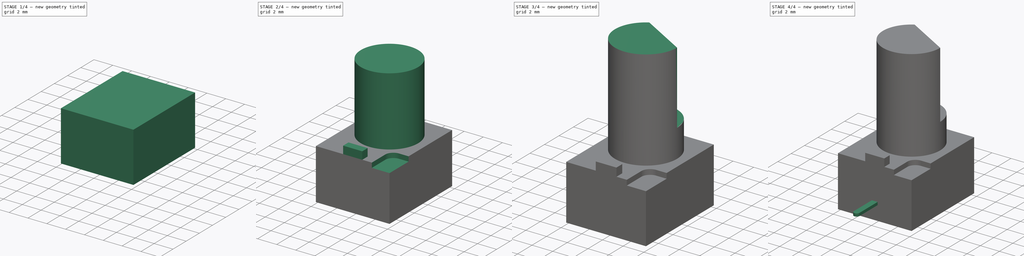
[diagram: build sequence overview — one tinted view per stage of 4, left to right]
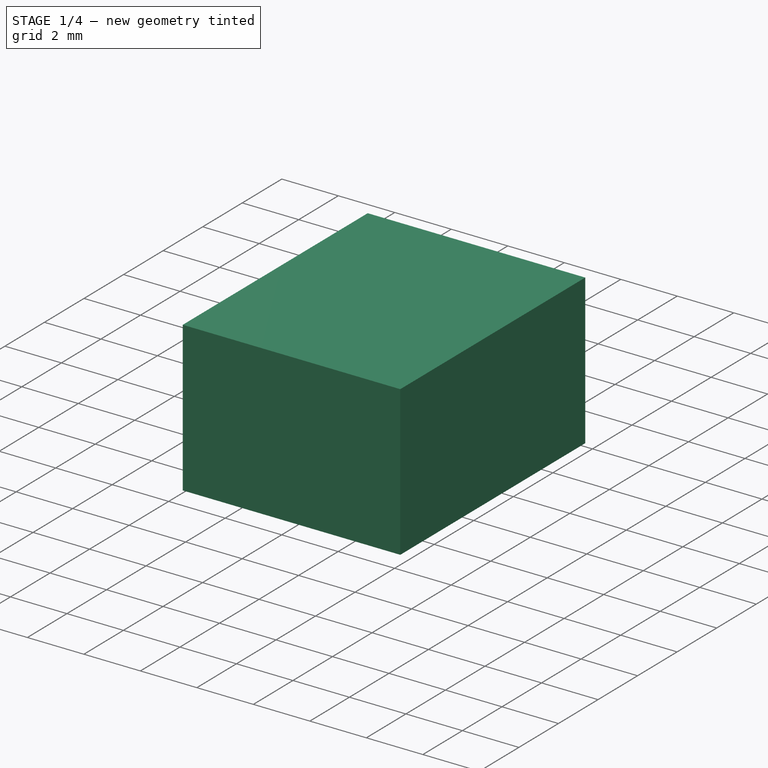
[diagram: stage 1 of 4 — iso view after this stage's code; geometry added in this stage tinted green]
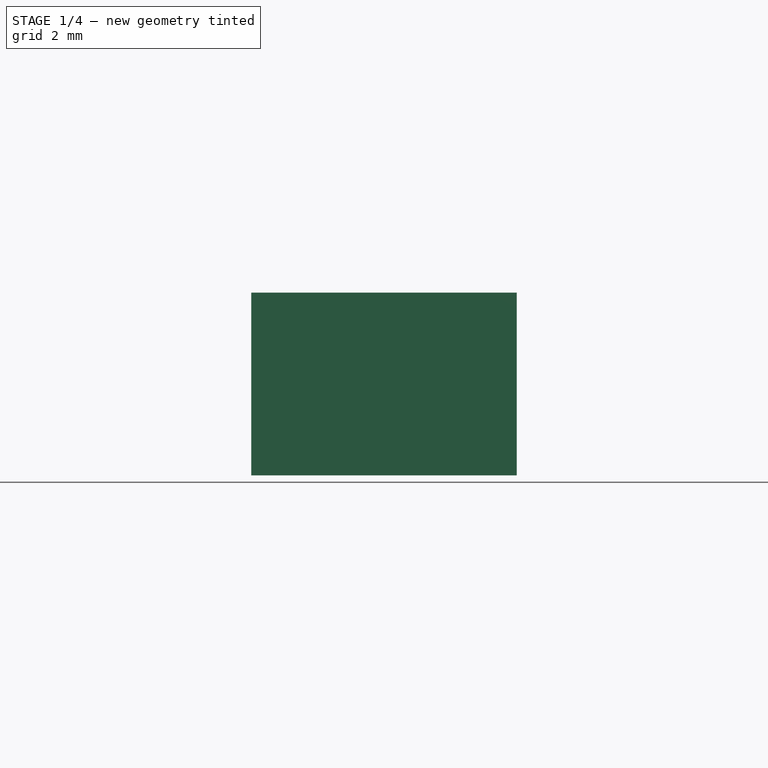
[diagram: stage 1 of 4 — front view after this stage's code; geometry added in this stage tinted green]
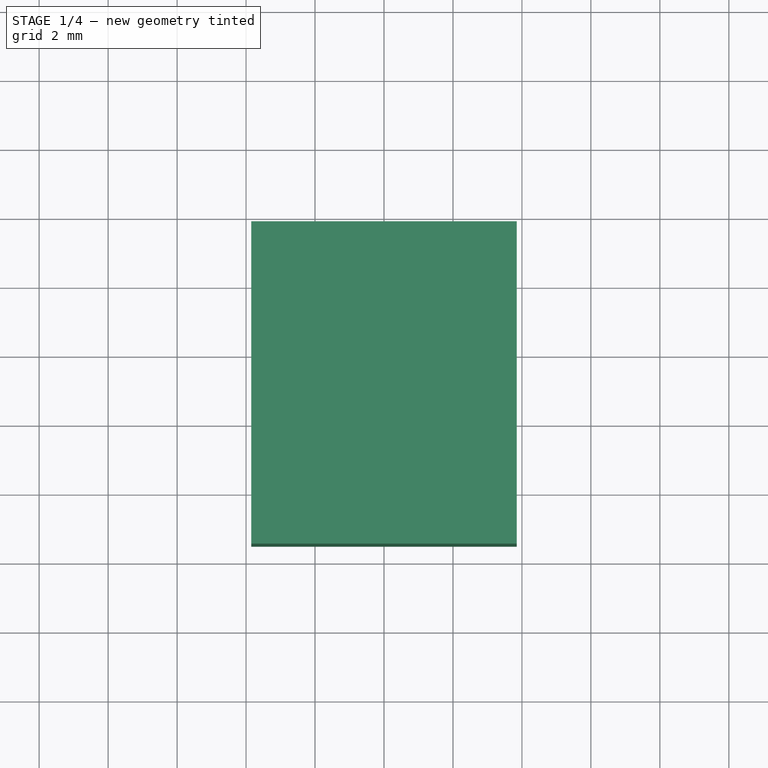
[diagram: stage 1 of 4 — top view after this stage's code; geometry added in this stage tinted green]
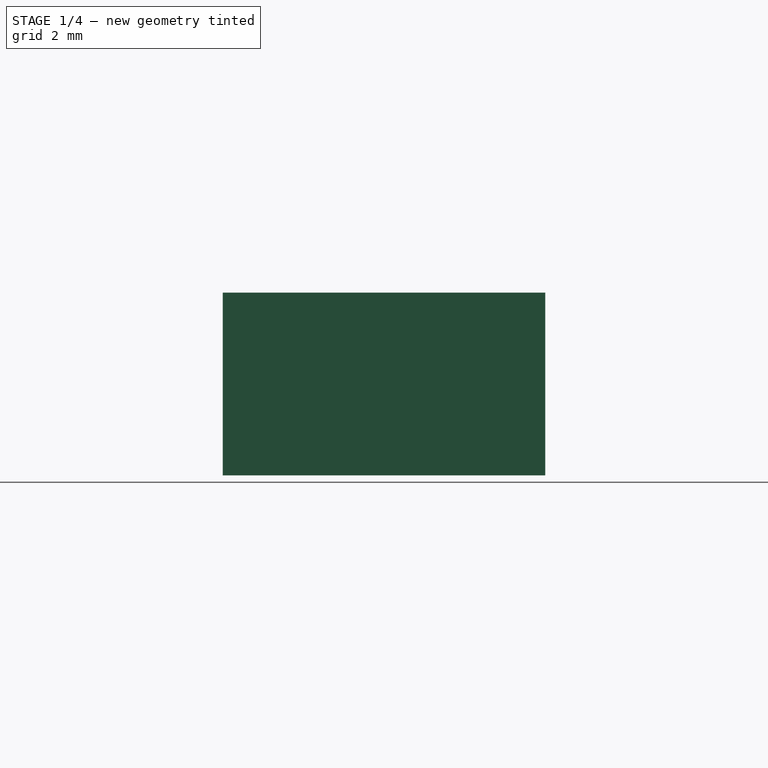
[diagram: stage 1 of 4 — right view after this stage's code; geometry added in this stage tinted green]
FCSTD DOCUMENT  (FreeCAD 0.19R16699 (Git))
Label: Alpha Taiwan Potentiometers Part Design
License: All rights reserved
LicenseURL: http://en.wikipedia.org/wiki/All_rights_reserved
objects: Sketcher::SketchObject×10, PartDesign::Body×6, PartDesign::Pad×5, PartDesign::ShapeBinder×3, PartDesign::Pocket×3, PartDesign::Revolution×2, PartDesign::FeatureBase×2, App::DocumentObjectGroup×1
note: 41 computed .brp shape members not serialized (recipe doc carries the construction recipe); baked Part::Feature solids carry a one-line shape summary decoded from their .brp

FEATURE [Sketcher::SketchObject] Sketch
  MapMode = 5
  Support = -> [XY_Plane]
  sketch-geometry (4):
    g0: LineSegment StartX=-3.85 StartY=3.85 StartZ=0 EndX=3.85 EndY=3.85 EndZ=0
    g1: LineSegment StartX=3.85 StartY=-5.5 StartZ=0 EndX=-3.85 EndY=-5.5 EndZ=0
    g2: LineSegment StartX=3.85 StartY=3.85 StartZ=0 EndX=3.85 EndY=-5.5 EndZ=0
    g3: LineSegment StartX=-3.85 StartY=3.85 StartZ=0 EndX=-3.85 EndY=-5.5 EndZ=0
  constraints (11):
    c: Horizontal(g1)
    c: DistanceX(g0,g0) = 7.7
    c: Symmetric(g0,g0,g-2)
    c: Coincident(g2,g0)
    c: Coincident(g2,g1)
    c: Vertical(g2)
    c: Coincident(g3,g0)
    c: Coincident(g3,g1)
    c: Vertical(g3)
    c: DistanceY(g1,g-1) = 5.5
    c: DistanceY(g-1,g0) = 3.85
FEATURE [PartDesign::Pad] Pad
  Length = 1
  Length2 = 100
  Profile = -> Sketch
  Type = 0
FEATURE [PartDesign::ShapeBinder] ShapeBinder
  Placement = pos=(0,0,1) rot=(0,0,1;0rad)
  Support = -> [Pad]
  TraceSupport = false
FEATURE [Sketcher::SketchObject] Sketch001
  ExternalGeometry = -> [ShapeBinder]
  MapMode = 5
  Placement = pos=(0,0,1) rot=(0,0,1;0rad)
  Support = -> [ShapeBinder]
  sketch-geometry (4):
    g0: LineSegment StartX=3.85 StartY=3.85 StartZ=0 EndX=-3.85 EndY=3.85 EndZ=0
    g1: LineSegment StartX=-3.85 StartY=3.85 StartZ=0 EndX=-3.85 EndY=-5.5 EndZ=0
    g2: LineSegment StartX=-3.85 StartY=-5.5 StartZ=0 EndX=3.85 EndY=-5.5 EndZ=0
    g3: LineSegment StartX=3.85 StartY=-5.5 StartZ=0 EndX=3.85 EndY=3.85 EndZ=0
  constraints (10):
    c: Coincident(g0,g1)
    c: Coincident(g1,g2)
    c: Coincident(g2,g3)
    c: Coincident(g3,g0)
    c: Horizontal(g0)
    c: Horizontal(g2)
    c: Vertical(g1)
    c: Vertical(g3)
    c: Coincident(g0,g-3)
    c: Coincident(g1,g-4)
FEATURE [PartDesign::Pad] Pad001
  BaseFeature = -> Pad
  Length = 3
  Length2 = 100
  Profile = -> Sketch001
  Type = 0
FEATURE [PartDesign::ShapeBinder] ShapeBinder001
  Placement = pos=(0,0,3) rot=(0,0,1;0rad)
  Support = -> [Pad001]
  TraceSupport = false
FEATURE [Sketcher::SketchObject] Sketch002
  ExternalGeometry = -> [ShapeBinder001]
  MapMode = 5
  Placement = pos=(0,0,4) rot=(0,0,1;0rad)
  Support = -> [ShapeBinder001]
  sketch-geometry (4):
    g0: LineSegment StartX=3.85 StartY=3.85 StartZ=0 EndX=-3.85 EndY=3.85 EndZ=0
    g1: LineSegment StartX=-3.85 StartY=3.85 StartZ=0 EndX=-3.85 EndY=-5.5 EndZ=0
    g2: LineSegment StartX=-3.85 StartY=-5.5 StartZ=0 EndX=3.85 EndY=-5.5 EndZ=0
    g3: LineSegment StartX=3.85 StartY=-5.5 StartZ=0 EndX=3.85 EndY=3.85 EndZ=0
  constraints (10):
    c: Coincident(g0,g1)
    c: Coincident(g1,g2)
    c: Coincident(g2,g3)
    c: Coincident(g3,g0)
    c: Horizontal(g0)
    c: Horizontal(g2)
    c: Vertical(g1)
    c: Vertical(g3)
    c: Coincident(g0,g-3)
    c: Coincident(g1,g-4)
FEATURE [PartDesign::Pad] Pad002
  BaseFeature = -> Pad001
  Length = 1.3
  Length2 = 100
  Profile = -> Sketch002
  Type = 0
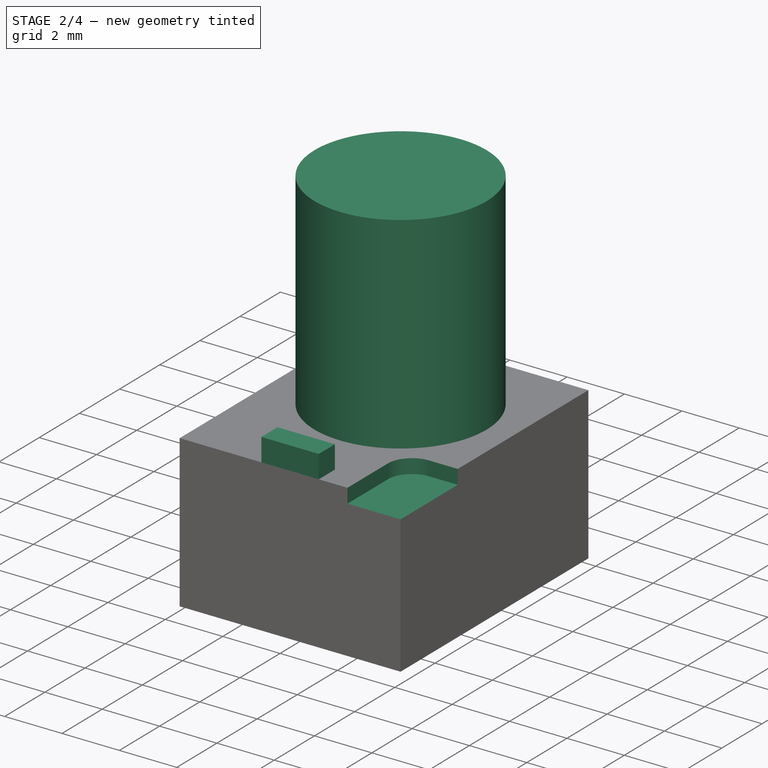
[diagram: stage 2 of 4 — iso view after this stage's code; geometry added in this stage tinted green]
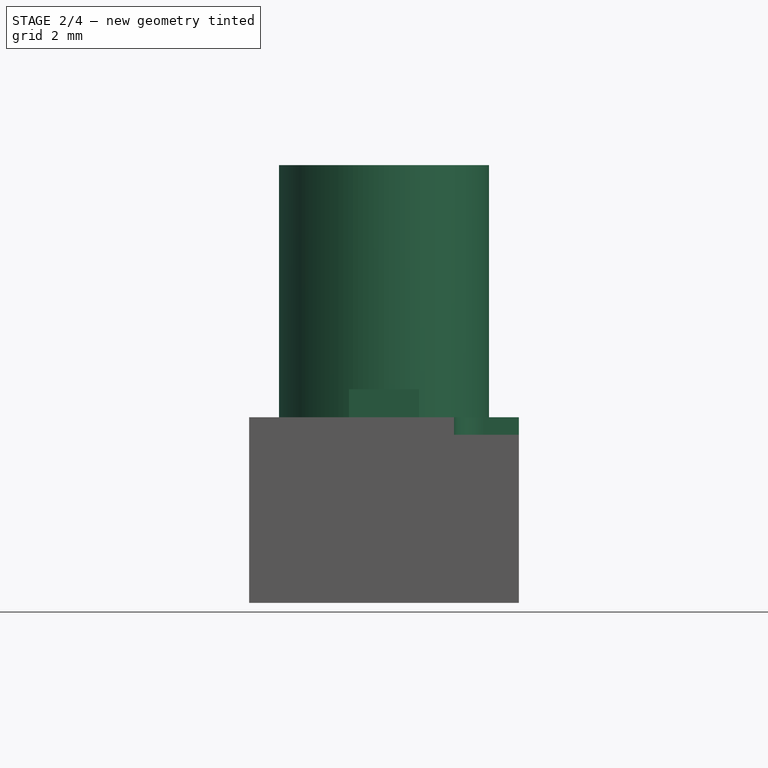
[diagram: stage 2 of 4 — front view after this stage's code; geometry added in this stage tinted green]
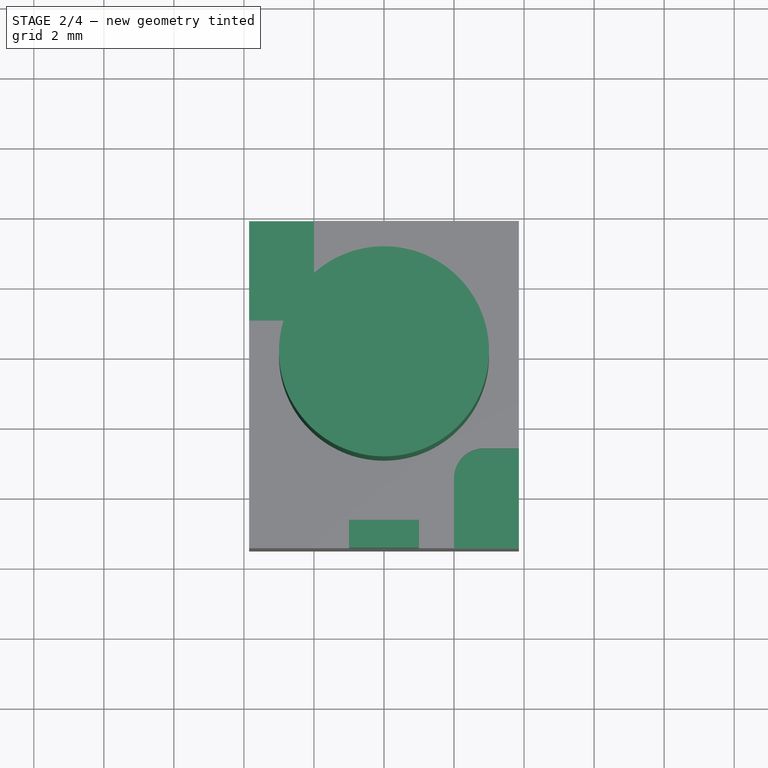
[diagram: stage 2 of 4 — top view after this stage's code; geometry added in this stage tinted green]
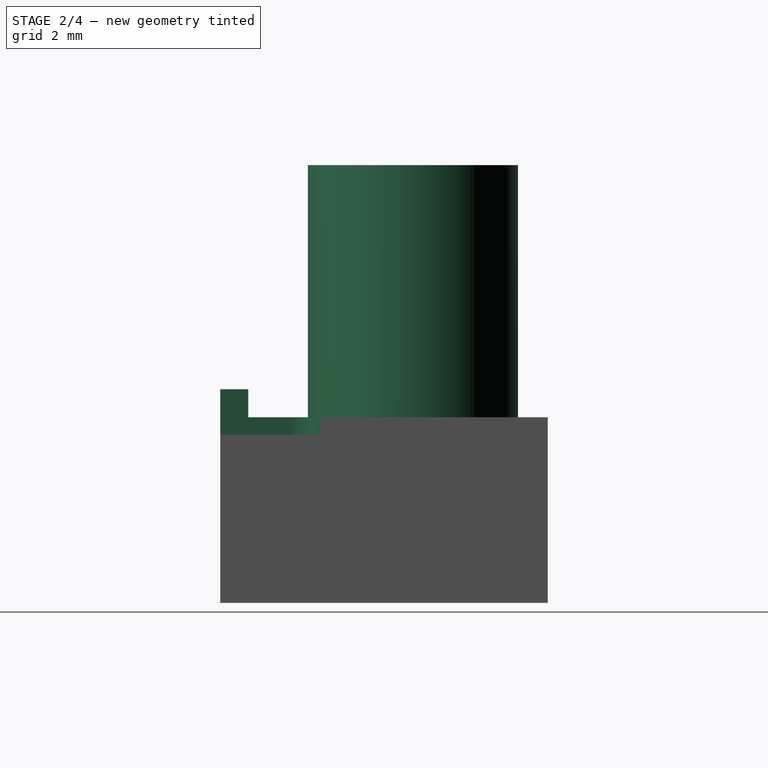
[diagram: stage 2 of 4 — right view after this stage's code; geometry added in this stage tinted green]
FEATURE [PartDesign::Body] Body001  label="RD701F Shaft Type 15F"
  Group = -> [Sketch003,Revolution,Sketch005,Pocket]
  Origin = -> Origin001
  Placement = pos=(0,0,5.3) rot=(0,0,1;0rad)
  Tip = -> Pocket
FEATURE [Sketcher::SketchObject] Sketch006
  AttachmentOffset = pos=(0,0,0) rot=(0,1,0;-1.5708rad)
  MapMode = 5
  Placement = pos=(0,0,0) rot=(-0.57735,0.57735,0.57735;4.18879rad)
  Support = -> [XZ_Plane005]
  sketch-geometry (6):
    g0: LineSegment StartX=0 StartY=0 StartZ=0 EndX=0 EndY=12.5 EndZ=0
    g1: LineSegment StartX=0 StartY=12.5 StartZ=0 EndX=-3 EndY=12.5 EndZ=0
    g2: LineSegment StartX=-3 StartY=12.5 StartZ=0 EndX=-3 EndY=5 EndZ=0
    g3: LineSegment StartX=-3 StartY=5 StartZ=0 EndX=-3.5 EndY=5 EndZ=0
    g4: LineSegment StartX=-3.5 StartY=5 StartZ=0 EndX=-3.5 EndY=0 EndZ=0
    g5: LineSegment StartX=-3.5 StartY=0 StartZ=0 EndX=0 EndY=0 EndZ=0
  constraints (17):
    c: Coincident(g0,g-1)
    c: PointOnObject(g0,g-2)
    c: Coincident(g1,g0)
    c: Horizontal(g1)
    c: Coincident(g2,g1)
    c: Vertical(g2)
    c: Coincident(g3,g2)
    c: Horizontal(g3)
    c: Coincident(g4,g3)
    c: PointOnObject(g4,g-1)
    c: Vertical(g4)
    c: Coincident(g5,g4)
    c: Coincident(g5,g0)
    c: DistanceY(g0,g0) = 12.5
    c: DistanceY(g4,g4) = 5
    c: DistanceX(g1,g1) = 3
    c: DistanceX(g5,g5) = 3.5
FEATURE [PartDesign::Revolution] Revolution001
  Angle = 360
  Axis = (0,2e-16,1)
  Base = (0,0,0)
  Placement = pos=(0,0,0) rot=(1,0,0;1.5708rad)
  Profile = -> Sketch006
  ReferenceAxis = -> Sketch006 [V_Axis]
FEATURE [PartDesign::Body] Body005  label="RD701F Shaft Type 12.5F"
  Group = -> [Sketch006,Revolution001,Sketch007,Pocket001]
  Origin = -> Origin005
  Placement = pos=(0,0,5.3) rot=(0,0,1;0rad)
  Tip = -> Pocket001
FEATURE [PartDesign::ShapeBinder] ShapeBinder002
  Placement = pos=(0,0,1.3) rot=(0,0,1;0rad)
  Support = -> [Pad002]
  TraceSupport = false
FEATURE [Sketcher::SketchObject] Sketch008
  ExternalGeometry = -> [ShapeBinder002]
  MapMode = 5
  Placement = pos=(0,0,5.3) rot=(0,0,1;0rad)
  Support = -> [ShapeBinder002]
  sketch-geometry (4):
    g0: LineSegment StartX=-1 StartY=-5.5 StartZ=0 EndX=1 EndY=-5.5 EndZ=0
    g1: LineSegment StartX=1 StartY=-5.5 StartZ=0 EndX=1 EndY=-4.7 EndZ=0
    g2: LineSegment StartX=1 StartY=-4.7 StartZ=0 EndX=-1 EndY=-4.7 EndZ=0
    g3: LineSegment StartX=-1 StartY=-4.7 StartZ=0 EndX=-1 EndY=-5.5 EndZ=0
  constraints (11):
    c: Coincident(g0,g1)
    c: Coincident(g1,g2)
    c: Coincident(g2,g3)
    c: Coincident(g3,g0)
    c: Horizontal(g0)
    c: Vertical(g1)
    c: Vertical(g3)
    c: PointOnObject(g0,g-3)
    c: Symmetric(g1,g2,g-2)
    c: DistanceY(g1,g1) = 0.8
    c: DistanceX(g0,g0) = 2
FEATURE [PartDesign::Pad] Pad004
  BaseFeature = -> Pad002
  Length = 0.8
  Length2 = 100
  Profile = -> Sketch008
  Type = 0
FEATURE [Sketcher::SketchObject] Sketch009
  ExternalGeometry = -> [ShapeBinder002]
  MapMode = 5
  Placement = pos=(0,0,5.3) rot=(0,0,1;0rad)
  Support = -> [ShapeBinder002]
  sketch-geometry (10):
    g0: ArcOfCircle CenterX=2.85 CenterY=-3.5 CenterZ=0 NormalX=0 NormalY=0 NormalZ=1 AngleXU=0 Radius=0.85 StartAngle=1.5708 EndAngle=3.14159
    g1: LineSegment StartX=2.85 StartY=-2.65 StartZ=0 EndX=3.85 EndY=-2.65 EndZ=0
    g2: LineSegment StartX=2 StartY=-3.5 StartZ=0 EndX=2 EndY=-5.5 EndZ=0
    g3: LineSegment StartX=3.85 StartY=-2.65 StartZ=0 EndX=3.85 EndY=-5.5 EndZ=0
    g4: LineSegment StartX=3.85 StartY=-5.5 StartZ=0 EndX=2 EndY=-5.5 EndZ=0
    g5: ArcOfCircle CenterX=-2.85 CenterY=1.85 CenterZ=0 NormalX=0 NormalY=0 NormalZ=1 AngleXU=0 Radius=0.85 StartAngle=4.71239 EndAngle=6.28319
    g6: LineSegment StartX=-2 StartY=1.85 StartZ=0 EndX=-2 EndY=3.85 EndZ=0
    g7: LineSegment StartX=-2.85 StartY=1 StartZ=0 EndX=-3.85 EndY=1 EndZ=0
    g8: LineSegment StartX=-3.85 StartY=1 StartZ=0 EndX=-3.85 EndY=3.85 EndZ=0
    g9: LineSegment StartX=-3.85 StartY=3.85 StartZ=0 EndX=-2 EndY=3.85 EndZ=0
  constraints (30):
    c: Coincident(g1,g0)
    c: PointOnObject(g1,g-4)
    c: Horizontal(g1)
    c: Coincident(g2,g0)
    c: PointOnObject(g2,g-3)
    c: Vertical(g2)
    c: Vertical(g0,g0)
    c: Horizontal(g0,g0)
    c: Coincident(g3,g1)
    c: Coincident(g3,g-4)
    c: Coincident(g4,g3)
    c: Coincident(g4,g2)
    c: Coincident(g6,g5)
    c: PointOnObject(g6,g-5)
    c: Vertical(g6)
    c: Coincident(g7,g5)
    c: PointOnObject(g7,g-6)
    c: Horizontal(g7)
    c: Coincident(g8,g7)
    c: Coincident(g8,g-6)
    c: Coincident(g9,g8)
    c: Coincident(g9,g6)
    c: DistanceX(g4,g4) = 1.85
    c: Equal(g4,g9)
    c: DistanceX(g1,g1) = 1
    c: DistanceY(g2,g2) = 2
    c: Vertical(g5,g5)
    c: Horizontal(g5,g5)
    c: Equal(g8,g3)
    c: Equal(g6,g2)
FEATURE [PartDesign::Pocket] Pocket002
  BaseFeature = -> Pad004
  Length = 0.5
  Length2 = 100
  Profile = -> Sketch009
  Type = 0
FEATURE [PartDesign::Body] Body  label="RD701F Body"
  Group = -> [Sketch,Pad,ShapeBinder,Sketch001,Pad001,ShapeBinder001,Sketch002,Pad002,ShapeBinder002,Sketch008,Pad004,Sketch009,Pocket002]
  Origin = -> Origin
  Tip = -> Pocket002
FEATURE [App::DocumentObjectGroup] Group  label="RD701F-20B1-15F"
  Group = -> [Body,Body001,Body002,Body003,Body004,Body005]
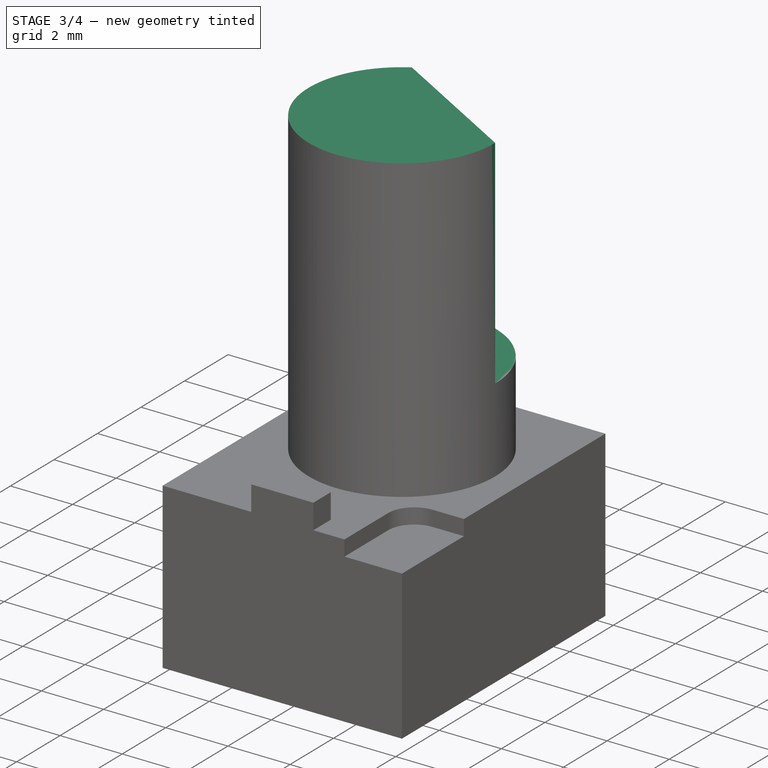
[diagram: stage 3 of 4 — iso view after this stage's code; geometry added in this stage tinted green]
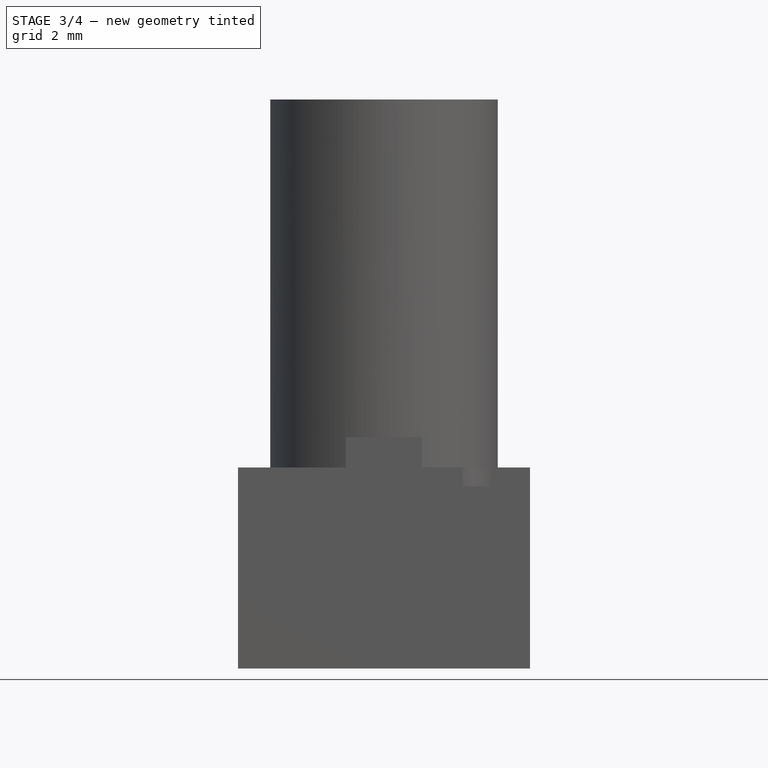
[diagram: stage 3 of 4 — front view after this stage's code; geometry added in this stage tinted green]
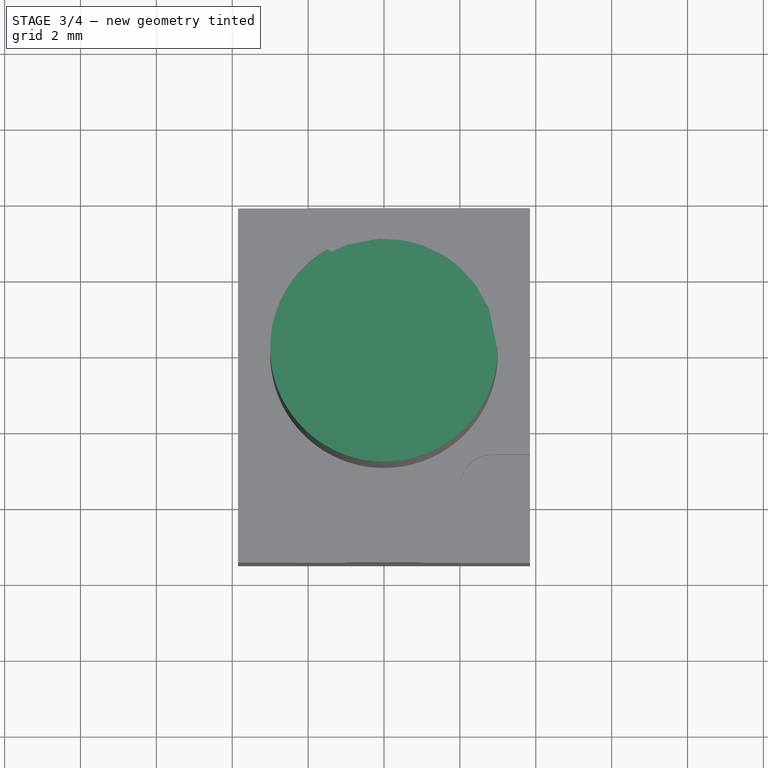
[diagram: stage 3 of 4 — top view after this stage's code; geometry added in this stage tinted green]
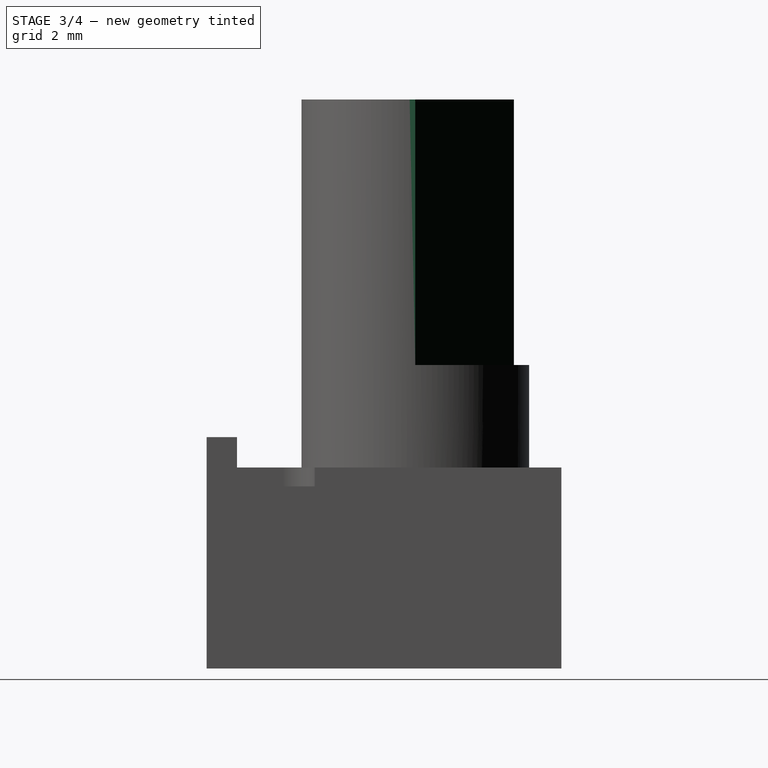
[diagram: stage 3 of 4 — right view after this stage's code; geometry added in this stage tinted green]
FEATURE [Sketcher::SketchObject] Sketch003
  AttachmentOffset = pos=(0,0,0) rot=(0,1,0;-1.5708rad)
  MapMode = 5
  Placement = pos=(0,0,0) rot=(-0.57735,0.57735,0.57735;4.18879rad)
  Support = -> [XZ_Plane001]
  sketch-geometry (6):
    g0: LineSegment StartX=0 StartY=0 StartZ=0 EndX=-3.5 EndY=0 EndZ=0
    g1: LineSegment StartX=-3.5 StartY=0 StartZ=0 EndX=-3.5 EndY=5 EndZ=0
    g2: LineSegment StartX=-3.5 StartY=5 StartZ=0 EndX=-3 EndY=5 EndZ=0
    g3: LineSegment StartX=-3 StartY=5 StartZ=0 EndX=-3 EndY=15 EndZ=0
    g4: LineSegment StartX=-3 StartY=15 StartZ=0 EndX=0 EndY=15 EndZ=0
    g5: LineSegment StartX=0 StartY=15 StartZ=0 EndX=0 EndY=0 EndZ=0
  constraints (17):
    c: Coincident(g-1,g0)
    c: Horizontal(g0)
    c: Coincident(g0,g1)
    c: Vertical(g1)
    c: Coincident(g1,g2)
    c: Horizontal(g2)
    c: Coincident(g2,g3)
    c: Vertical(g3)
    c: Coincident(g3,g4)
    c: Horizontal(g4)
    c: Coincident(g4,g5)
    c: Coincident(g5,g0)
    c: Vertical(g5)
    c: DistanceY(g0,g4) = 15
    c: DistanceY(g0,g1) = 5
    c: DistanceX(g4,g4) = 3
    c: DistanceX(g0,g0) = 3.5
FEATURE [PartDesign::Revolution] Revolution
  Angle = 360
  Axis = (0,2e-16,1)
  Base = (0,0,0)
  Placement = pos=(0,0,0) rot=(1,0,0;1.5708rad)
  Profile = -> Sketch003
  ReferenceAxis = -> Sketch003 [V_Axis]
FEATURE [PartDesign::Body] Body004  label="RD701F Terminal Type 20B1 #1"
  BaseFeature = -> Body002
  Group = -> [Clone001]
  Origin = -> Origin004
  Placement = pos=(-2,0,0) rot=(0,0,1;0rad)
  Tip = -> Clone001
FEATURE [Sketcher::SketchObject] Sketch005
  AttachmentOffset = pos=(0,0,0) rot=(0,0,1;-3.66519rad)
  MapMode = 5
  Placement = pos=(0,9.9e-15,15) rot=(0,0,1;5.75959rad)
  Support = -> [Revolution]
  sketch-geometry (4):
    g0: LineSegment StartX=-4.86212 StartY=4.4416 StartZ=0 EndX=4.74195 EndY=4.4416 EndZ=0
    g1: LineSegment StartX=4.74195 StartY=4.4416 StartZ=0 EndX=4.74195 EndY=1.5 EndZ=0
    g2: LineSegment StartX=4.74195 StartY=1.5 StartZ=0 EndX=-4.86212 EndY=1.5 EndZ=0
    g3: LineSegment StartX=-4.86212 StartY=1.5 StartZ=0 EndX=-4.86212 EndY=4.4416 EndZ=0
  constraints (9):
    c: Coincident(g0,g1)
    c: Coincident(g1,g2)
    c: Coincident(g2,g3)
    c: Coincident(g3,g0)
    c: Horizontal(g0)
    c: Horizontal(g2)
    c: Vertical(g1)
    c: Vertical(g3)
    c: DistanceY(g-1,g1) = 1.5
FEATURE [PartDesign::Pocket] Pocket
  BaseFeature = -> Revolution
  Length = 7
  Length2 = 100
  Placement = pos=(0,0,0) rot=(1,0,0;1.5708rad)
  Profile = -> Sketch005
  Type = 0
FEATURE [Sketcher::SketchObject] Sketch007
  AttachmentOffset = pos=(0,0,12.5) rot=(0,0,1;-3.66519rad)
  MapMode = 5
  Placement = pos=(0,0,12.5) rot=(0,0,1;2.61799rad)
  Support = -> [XY_Plane005]
  sketch-geometry (4):
    g0: LineSegment StartX=-4.68133 StartY=-1.5 StartZ=0 EndX=4.45061 EndY=-1.5 EndZ=0
    g1: LineSegment StartX=4.45061 StartY=-1.5 StartZ=0 EndX=4.45061 EndY=-3.99703 EndZ=0
    g2: LineSegment StartX=4.45061 StartY=-3.99703 StartZ=0 EndX=-4.68133 EndY=-3.99703 EndZ=0
    g3: LineSegment StartX=-4.68133 StartY=-3.99703 StartZ=0 EndX=-4.68133 EndY=-1.5 EndZ=0
  constraints (9):
    c: Coincident(g0,g1)
    c: Coincident(g1,g2)
    c: Coincident(g2,g3)
    c: Coincident(g3,g0)
    c: Horizontal(g0)
    c: Horizontal(g2)
    c: Vertical(g1)
    c: Vertical(g3)
    c: DistanceY(g0,g-1) = 1.5
FEATURE [PartDesign::Pocket] Pocket001
  BaseFeature = -> Revolution001
  Length = 6
  Length2 = 100
  Placement = pos=(0,0,0) rot=(1,0,0;1.5708rad)
  Profile = -> Sketch007
  Type = 0
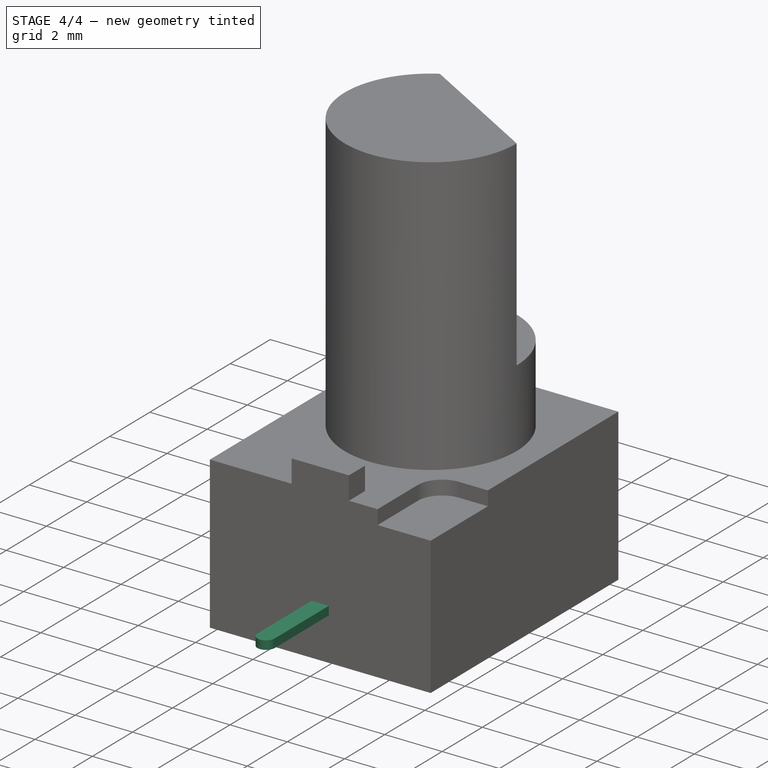
[diagram: stage 4 of 4 — iso view after this stage's code; geometry added in this stage tinted green]
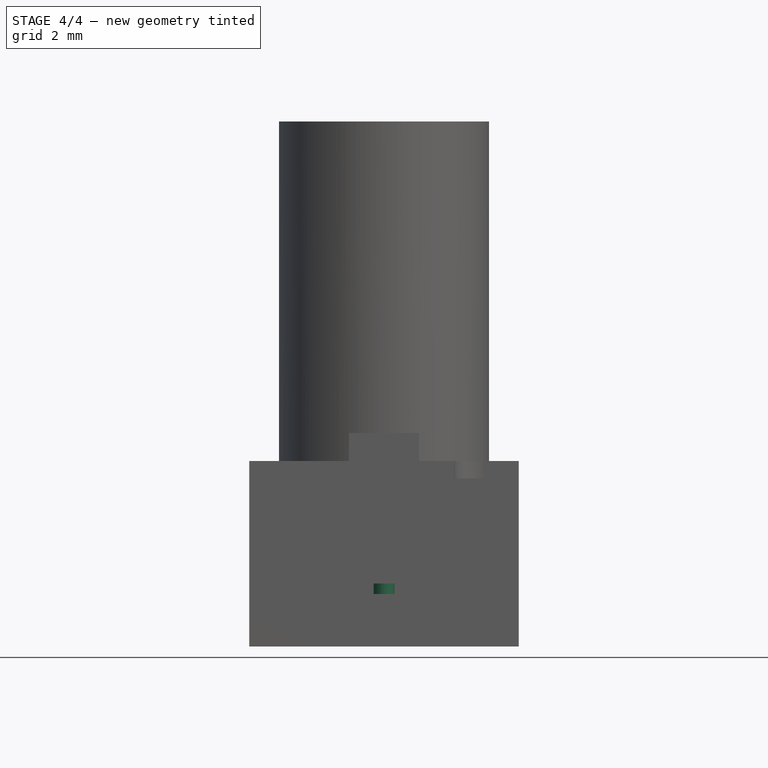
[diagram: stage 4 of 4 — front view after this stage's code; geometry added in this stage tinted green]
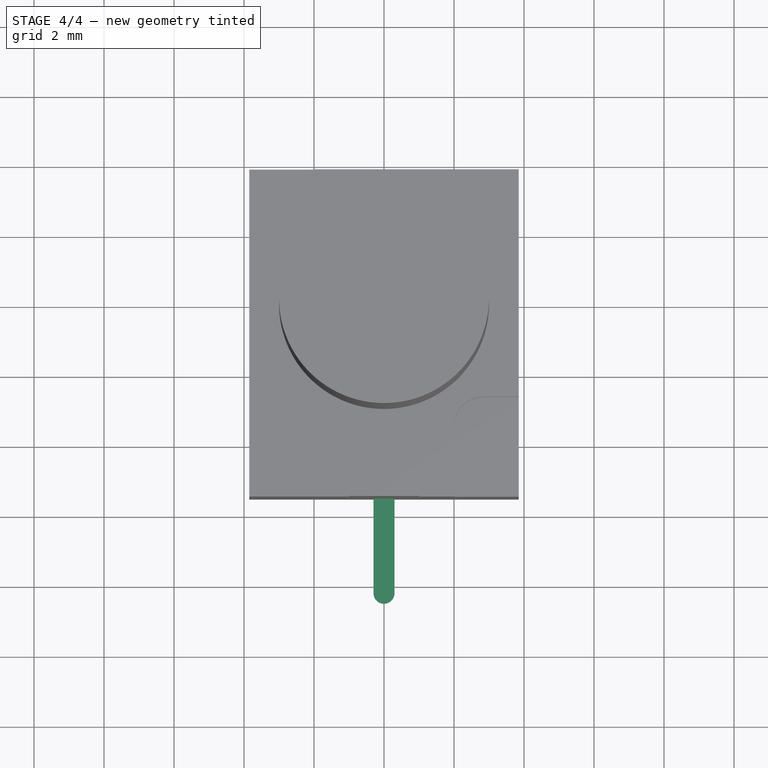
[diagram: stage 4 of 4 — top view after this stage's code; geometry added in this stage tinted green]
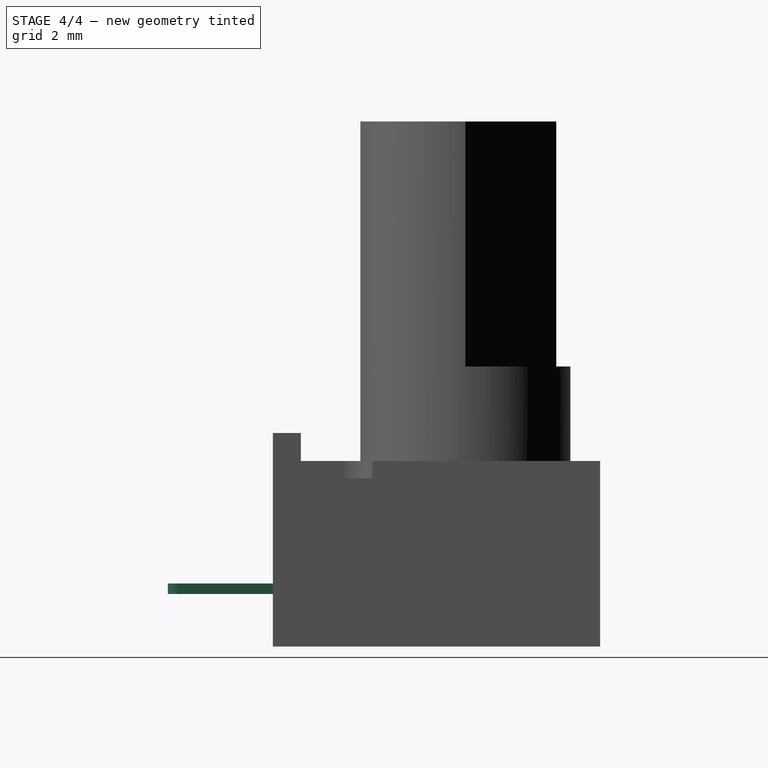
[diagram: stage 4 of 4 — right view after this stage's code; geometry added in this stage tinted green]
FEATURE [Sketcher::SketchObject] Sketch004
  MapMode = 5
  Support = -> [XY_Plane002]
  sketch-geometry (5):
    g0: ArcOfCircle CenterX=0 CenterY=-2.7 CenterZ=0 NormalX=0 NormalY=0 NormalZ=1 AngleXU=0 Radius=0.3 StartAngle=3.14159 EndAngle=6.28319
    g1: LineSegment StartX=-0.3 StartY=-2.7 StartZ=0 EndX=-0.3 EndY=0 EndZ=0
    g2: LineSegment StartX=-0.3 StartY=0 StartZ=0 EndX=0.3 EndY=0 EndZ=0
    g3: LineSegment StartX=0.3 StartY=0 StartZ=0 EndX=0.3 EndY=-2.7 EndZ=0
    g4: GeomPoint X=0 Y=-3 Z=0
  constraints (13):
    c: Tangent(g0,g1) = 1.5708
    c: Coincident(g1,g2)
    c: Coincident(g2,g3)
    c: Coincident(g3,g0)
    c: Vertical(g1)
    c: Vertical(g3)
    c: Horizontal(g0,g0)
    c: PointOnObject(g4,g0)
    c: Vertical(g4,g0)
    c: DistanceY(g4,g2) = 3
    c: DistanceX(g1,g2) = 0.6
    c: Symmetric(g2,g1,g-2)
    c: PointOnObject(g1,g-1)
FEATURE [PartDesign::Pad] Pad003
  Length = 0.3
  Length2 = 100
  Profile = -> Sketch004
  Type = 0
FEATURE [PartDesign::Body] Body002  label="RD701F Terminal Type 20B1 #2"
  Group = -> [Sketch004,Pad003]
  Origin = -> Origin002
  Placement = pos=(0,-5.5,1.5) rot=(0,0,1;0rad)
  Tip = -> Pad003
FEATURE [PartDesign::FeatureBase] Clone
  BaseFeature = -> Body002
  Placement = pos=(0,-5.5,1.5) rot=(0,0,1;0rad)
FEATURE [PartDesign::Body] Body003  label="RD701F Terminal Type 20B1 #3"
  BaseFeature = -> Body002
  Group = -> [Clone]
  Origin = -> Origin003
  Placement = pos=(2,0,0) rot=(0,0,1;0rad)
  Tip = -> Clone
FEATURE [PartDesign::FeatureBase] Clone001
  BaseFeature = -> Body002
  Placement = pos=(0,-5.5,1.5) rot=(0,0,1;0rad)
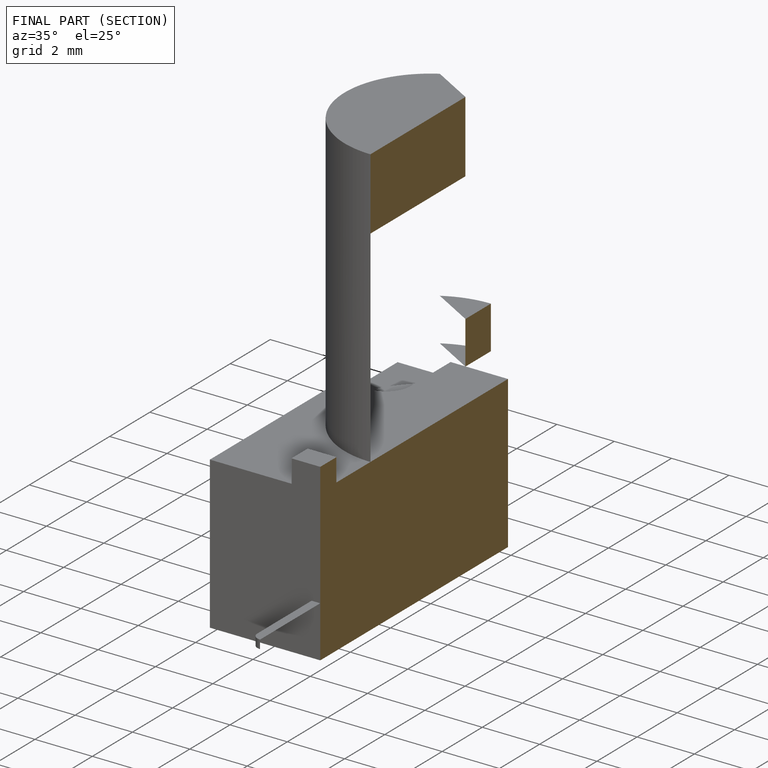
[diagram: finished part — half-section view (interior)]
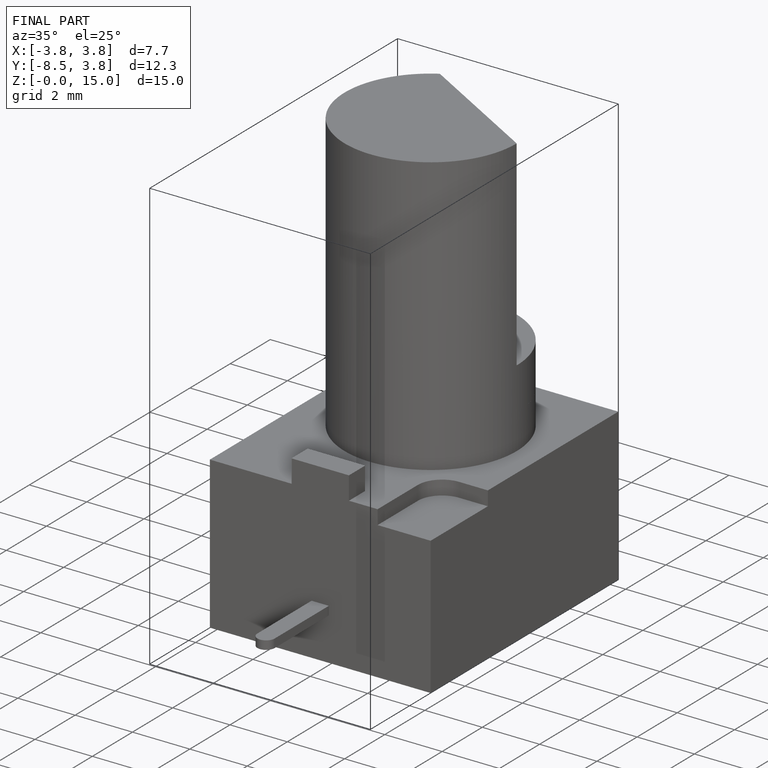
[diagram: finished part — iso view with bounding-box wireframe]
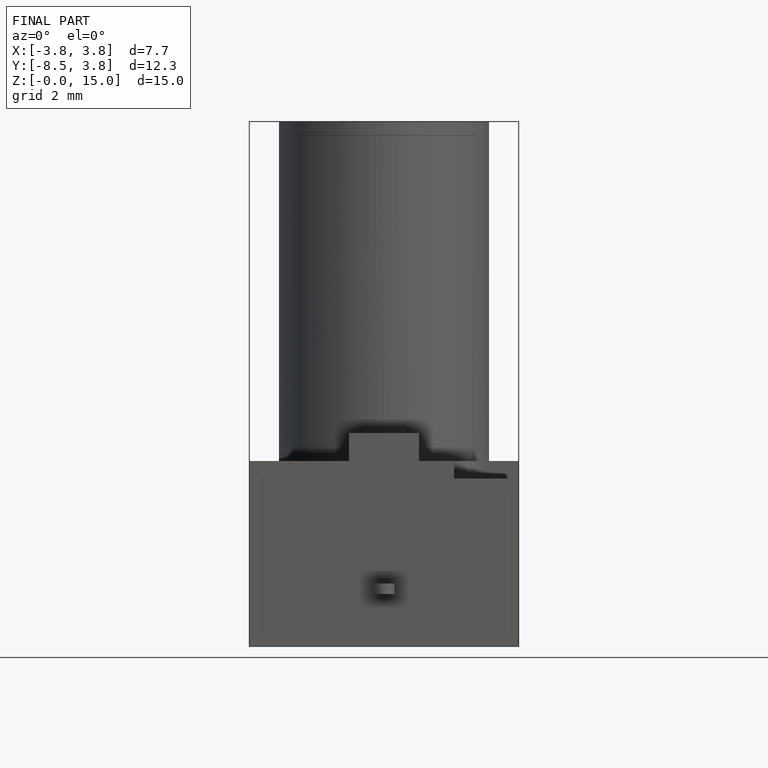
[diagram: finished part — front view with bounding-box wireframe]
